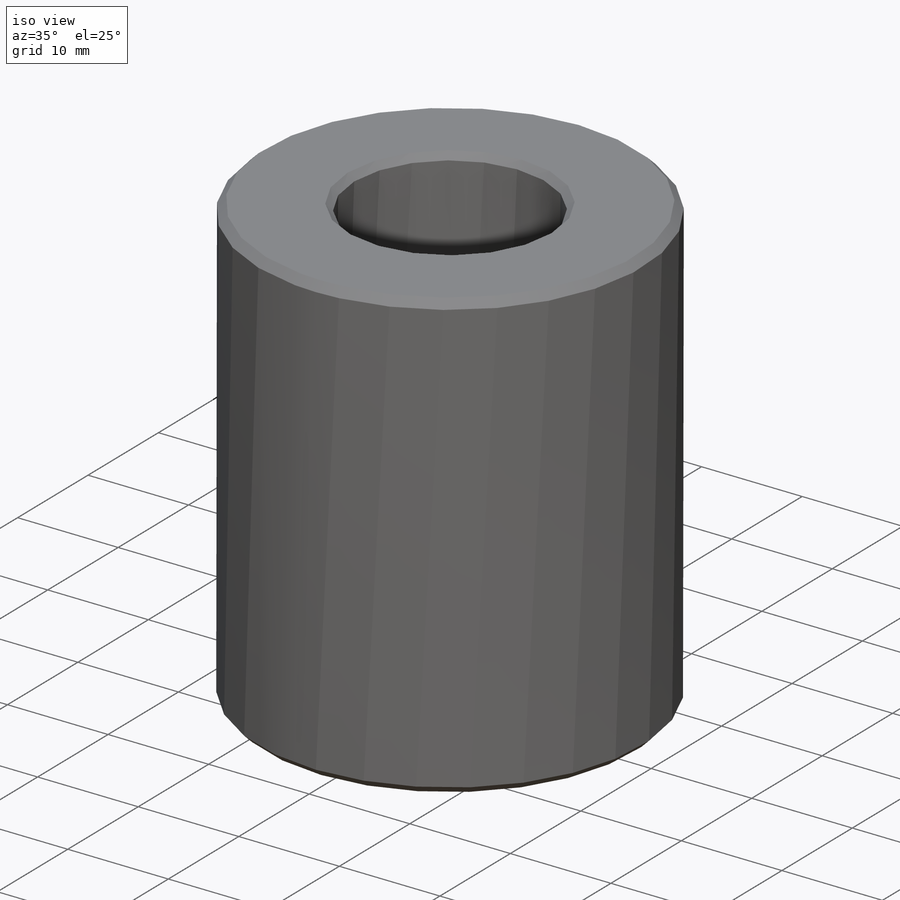
[diagram: iso view]
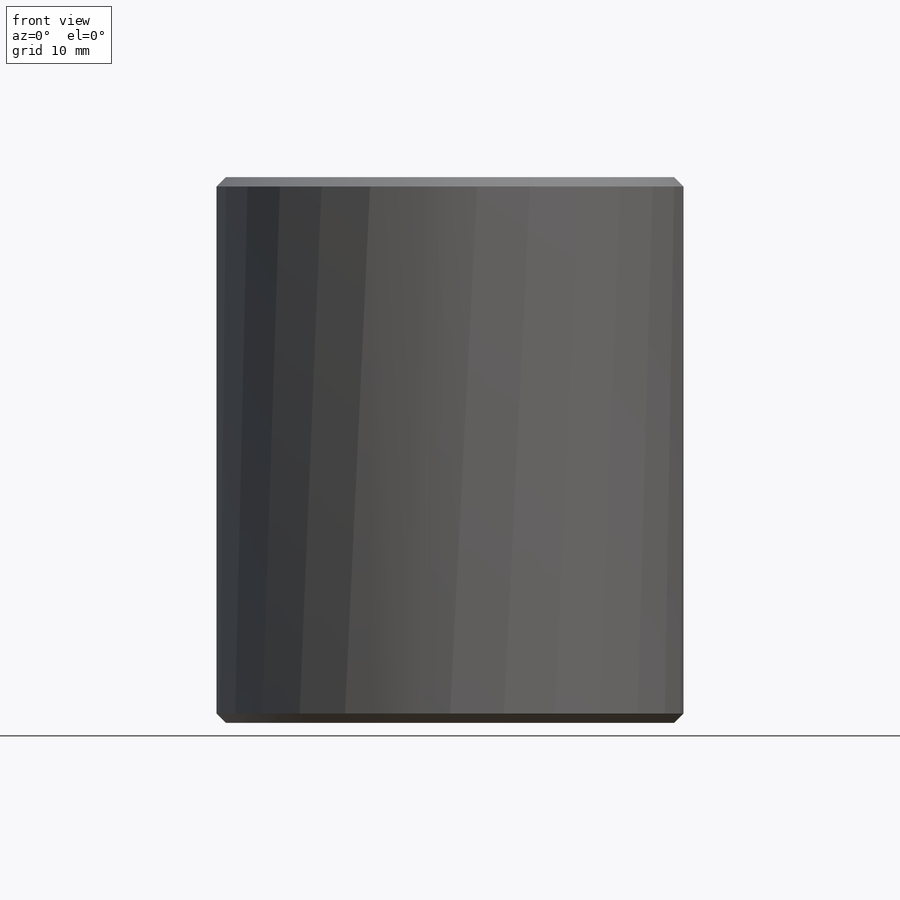
[diagram: front view]
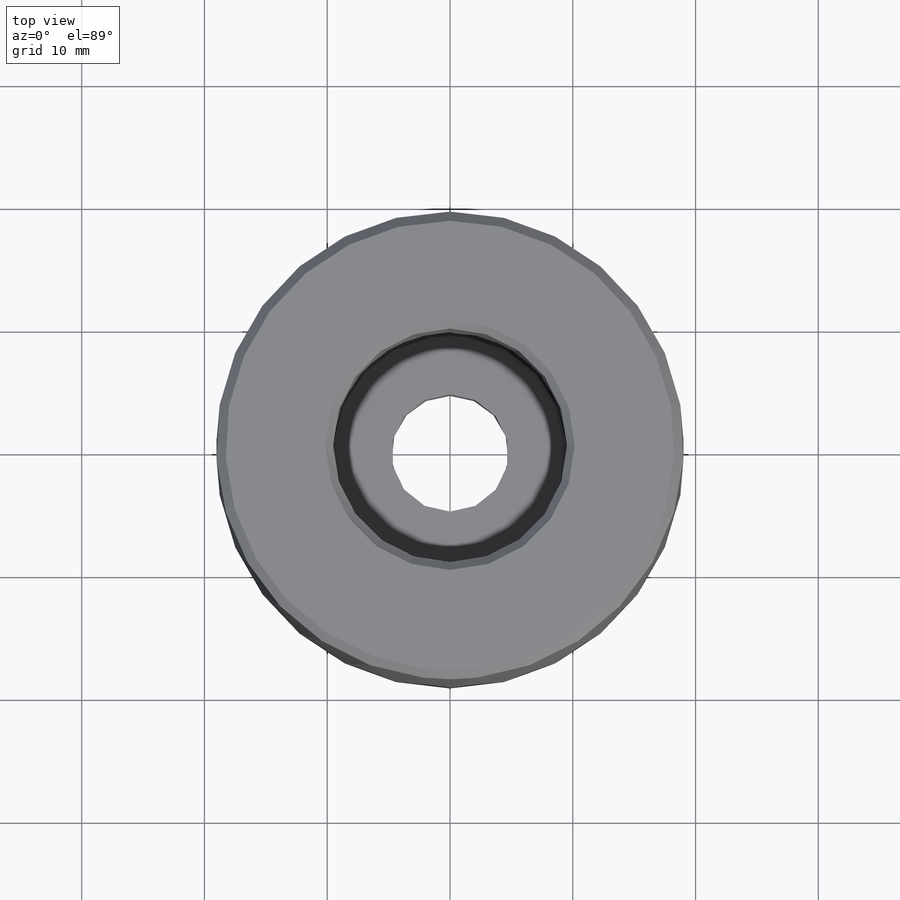
[diagram: top view]
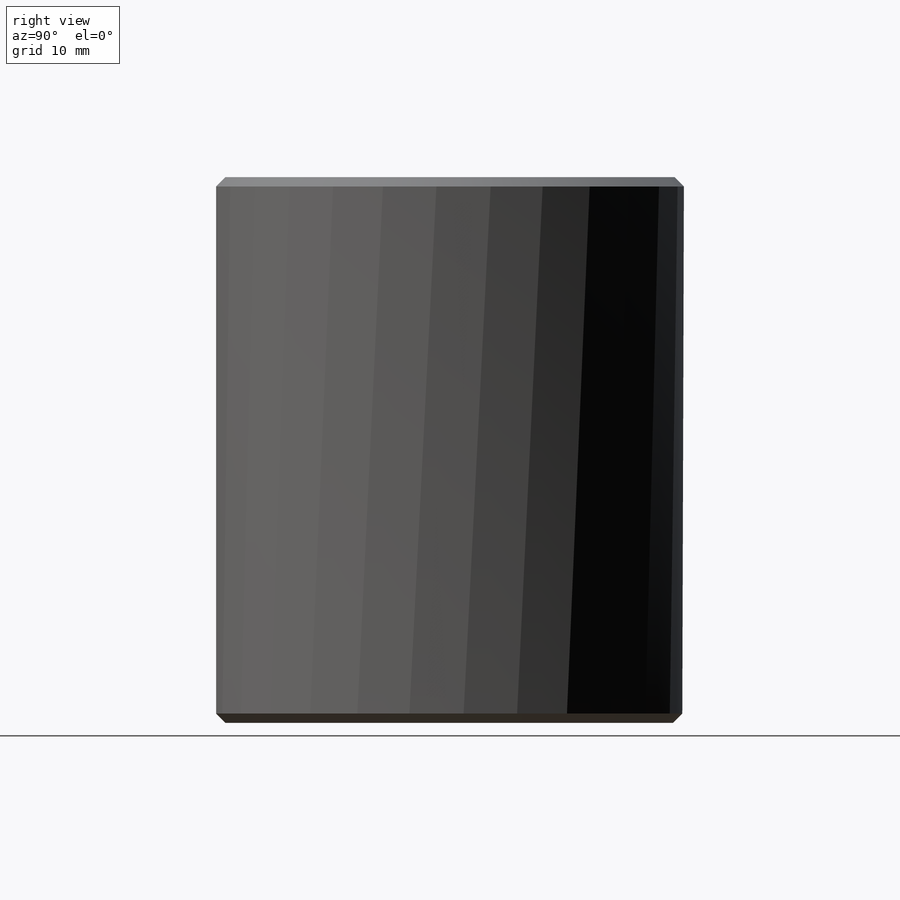
[diagram: right view]
SOLIDWORKS PART (.sldprt)
format: sldprt  version: not decoded by parser v0  size: 255,488 bytes
history: native  units: mm
features: sketch x5, hole x2, chamfer x2, material x1, extrude x1 + 1 further entry (+13 scaffold rows collapsed)
feature tree (25):
  scaffold x13  (default folders/planes/origin — collapsed)
  material  "Brass"
  "Origin"  ID=-1
  sketch  "Sketch1"  dims[D1=38.1mm]
  extrude  "Extrude1"  Depth=44.45mm
  hole  "3/8 (0.375) Diameter Hole1"  Diameter=9.5504mm Depth=44.45mm
  sketch  "Sketch3"
  sketch  "Sketch2"  dims[hole-wizard template sketch: 54 standard entries collapsed; hole parameters kept: c17.Thru Hole Dia.=9.5504mm c17.Thru Hole Depth=44.45mm c17.Far C'Sink Dia.=10.8204mm c17.D4=~2.963249mm c17.Far C'Sink Angle=90.0deg]
  chamfer  "Chamfer1"  Distance=0.762mm Angle=45deg
  hole  "3/4 (0.75) Diameter Hole1"  Diameter=19.05mm Depth=36.068mm
  sketch  "Sketch5"
  sketch  "Sketch4"  dims[hole-wizard template sketch: 39 standard entries collapsed; hole parameters kept: c13.Hole Dia.=19.05mm c13.Hole Depth=36.068mm c13.Near C'Sink Dia.=20.32mm c13.D4=~33.297463mm c13.Near C'Sink Angle=90.0deg c14.D5=~14.816244mm c14.Drill Angle=180.0deg]
  chamfer  "Chamfer2"  Distance=0.254mm Angle=45deg
decode coverage: 8 of 10 modeling features carry decoded parameters; 1 rows unclassified (native names shown)
note: ~ marks probable driven/reference dimensions
note: suppression state not decoded; provenance and decode notes live in map.json
